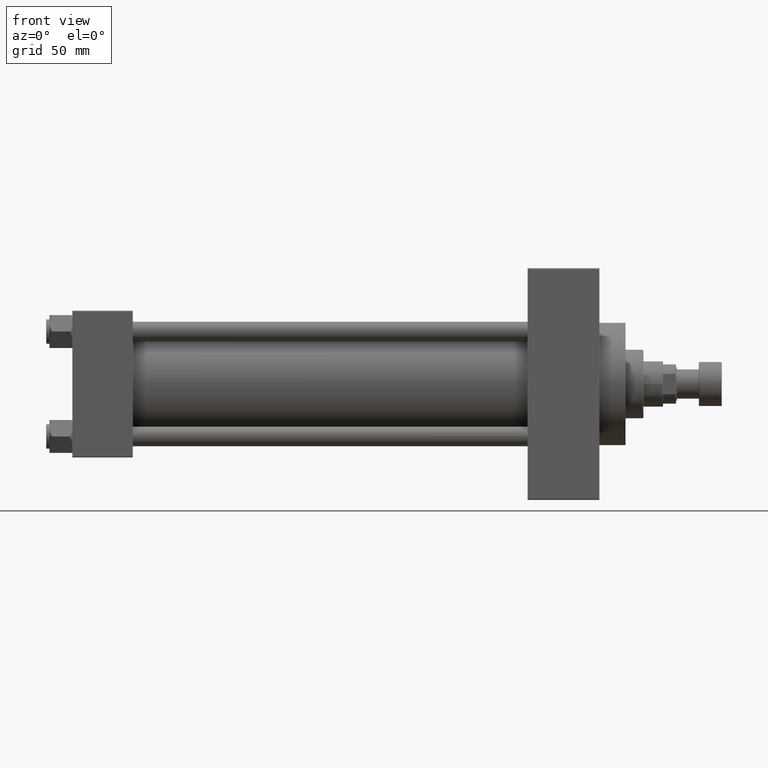
[diagram: clean part render]
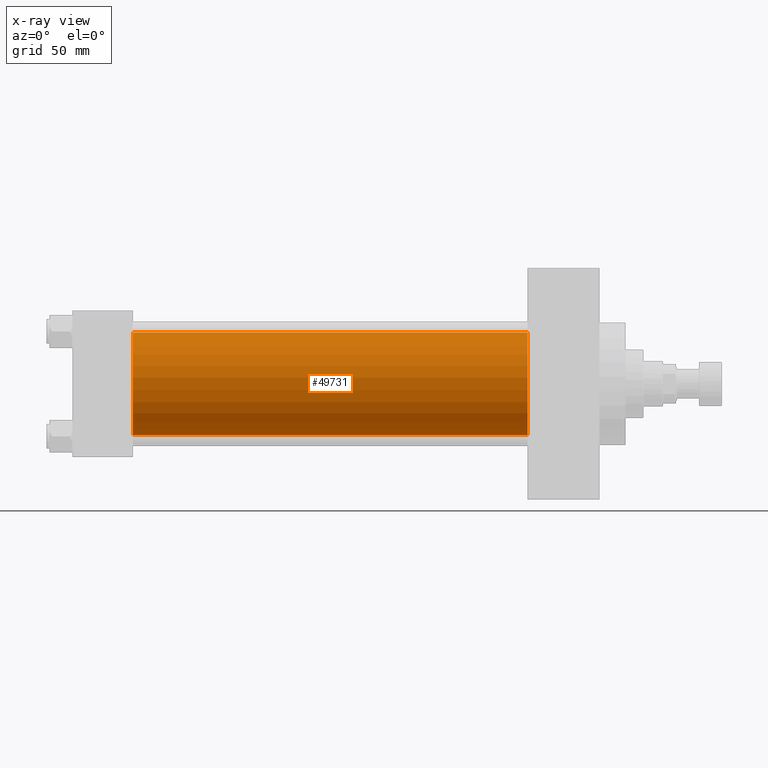
[diagram: x-ray — body ghosted, one internal face saturated and labeled with its STEP entity id]
A machine part, front view, then the same camera in x-ray: the body is ghosted and one INTERNAL B-rep face — a face not visible from any outside direction — is saturated and labeled: STEP entity #49731.
In plain terms, the highlighted cylindrical surface (partial cylindrical patch) has radius 31.5 mm, axis along (-1, -0, -0).
Its self-contained STEP definition (entity closure, byte-faithful):
#1287 = ORIENTED_EDGE ( 'NONE', *, *, #14900, .F. ) ;
#2136 = DIRECTION ( 'NONE',  ( 0.000000000000000000, 0.000000000000000000, -1.000000000000000000 ) ) ;
#4565 = VERTEX_POINT ( 'NONE', #26691 ) ;
#5739 = LINE ( 'NONE', #49663, #19159 ) ;
#6160 = CARTESIAN_POINT ( 'NONE',  ( 278.9999999999999432, -2.602085213965210642E-15, 0.000000000000000000 ) ) ;
#6864 = EDGE_LOOP ( 'NONE', ( #24931, #21395, #27973, #1287 ) ) ;
#10159 = EDGE_CURVE ( 'NONE', #15054, #4565, #21480, .T. ) ;
#11245 = DIRECTION ( 'NONE',  ( 0.000000000000000000, 0.000000000000000000, 1.000000000000000000 ) ) ;
#11730 = DIRECTION ( 'NONE',  ( -1.000000000000000000, -0.000000000000000000, -0.000000000000000000 ) ) ;
#12304 = VECTOR ( 'NONE', #39322, 1000.000000000000000 ) ;
#13115 = CARTESIAN_POINT ( 'NONE',  ( 278.9999999999999432, -2.602085213965210642E-15, 31.50000000000000000 ) ) ;
#14900 = EDGE_CURVE ( 'NONE', #42077, #15054, #15699, .T. ) ;
#15054 = VERTEX_POINT ( 'NONE', #37036 ) ;
#15699 = LINE ( 'NONE', #31041, #12304 ) ;
#18400 = EDGE_CURVE ( 'NONE', #42077, #43862, #19697, .T. ) ;
#19159 = VECTOR ( 'NONE', #21990, 1000.000000000000000 ) ;
#19697 = CIRCLE ( 'NONE', #30929, 31.50000000000000000 ) ;
#21395 = ORIENTED_EDGE ( 'NONE', *, *, #29624, .T. ) ;
#21480 = CIRCLE ( 'NONE', #42359, 31.50000000000000000 ) ;
#21990 = DIRECTION ( 'NONE',  ( -1.000000000000000000, -0.000000000000000000, -0.000000000000000000 ) ) ;
#24931 = ORIENTED_EDGE ( 'NONE', *, *, #18400, .T. ) ;
#26691 = CARTESIAN_POINT ( 'NONE',  ( 37.00000000000000000, 1.255552203348951850E-15, -31.50000000000000000 ) ) ;
#27902 = CARTESIAN_POINT ( 'NONE',  ( 278.9999999999999432, 1.255552203348951850E-15, -31.50000000000000000 ) ) ;
#27973 = ORIENTED_EDGE ( 'NONE', *, *, #10159, .F. ) ;
#29622 = DIRECTION ( 'NONE',  ( 0.000000000000000000, 0.000000000000000000, -1.000000000000000000 ) ) ;
#29624 = EDGE_CURVE ( 'NONE', #43862, #4565, #5739, .T. ) ;
#29836 = CYLINDRICAL_SURFACE ( 'NONE', #43957, 31.50000000000000000 ) ;
#30929 = AXIS2_PLACEMENT_3D ( 'NONE', #6160, #33061, #2136 ) ;
#31041 = CARTESIAN_POINT ( 'NONE',  ( 278.9999999999999432, -2.602085213965210642E-15, 31.50000000000000000 ) ) ;
#33061 = DIRECTION ( 'NONE',  ( 1.000000000000000000, 0.000000000000000000, 0.000000000000000000 ) ) ;
#36672 = CARTESIAN_POINT ( 'NONE',  ( 37.00000000000000000, -2.602085213965210642E-15, 0.000000000000000000 ) ) ;
#37036 = CARTESIAN_POINT ( 'NONE',  ( 37.00000000000000000, -2.602085213965210642E-15, 31.50000000000000000 ) ) ;
#39322 = DIRECTION ( 'NONE',  ( -1.000000000000000000, -0.000000000000000000, -0.000000000000000000 ) ) ;
#41661 = FACE_OUTER_BOUND ( 'NONE', #6864, .T. ) ;
#42077 = VERTEX_POINT ( 'NONE', #13115 ) ;
#42359 = AXIS2_PLACEMENT_3D ( 'NONE', #36672, #48743, #29622 ) ;
#42397 = CARTESIAN_POINT ( 'NONE',  ( 278.9999999999999432, -2.602085213965210642E-15, 0.000000000000000000 ) ) ;
#43862 = VERTEX_POINT ( 'NONE', #27902 ) ;
#43957 = AXIS2_PLACEMENT_3D ( 'NONE', #42397, #11730, #11245 ) ;
#48743 = DIRECTION ( 'NONE',  ( 1.000000000000000000, 0.000000000000000000, 0.000000000000000000 ) ) ;
#49663 = CARTESIAN_POINT ( 'NONE',  ( 278.9999999999999432, 1.255552203348951850E-15, -31.50000000000000000 ) ) ;
#49731 = ADVANCED_FACE ( 'NONE', ( #41661 ), #29836, .F. ) ;